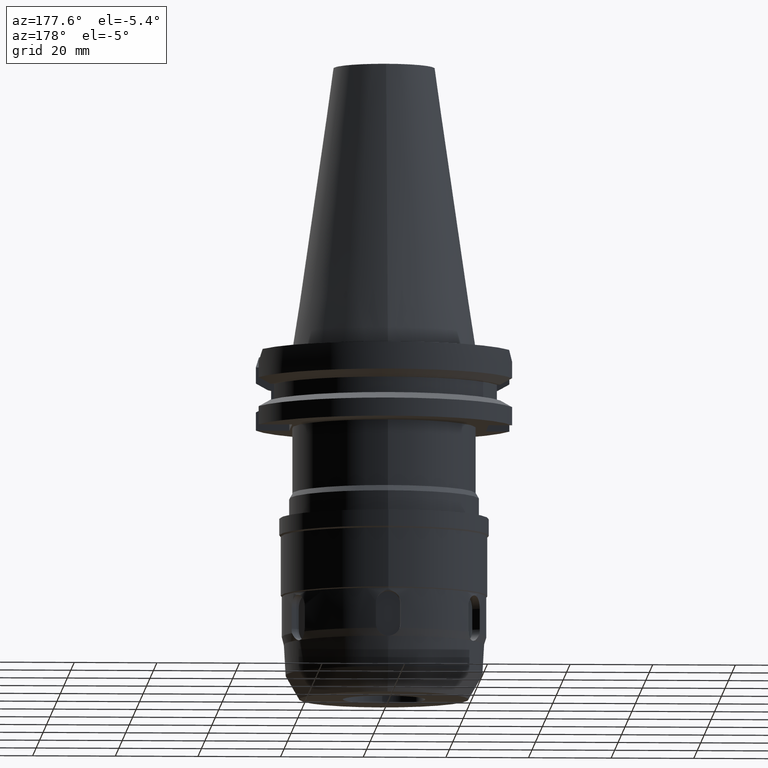
[diagram: clean part render]
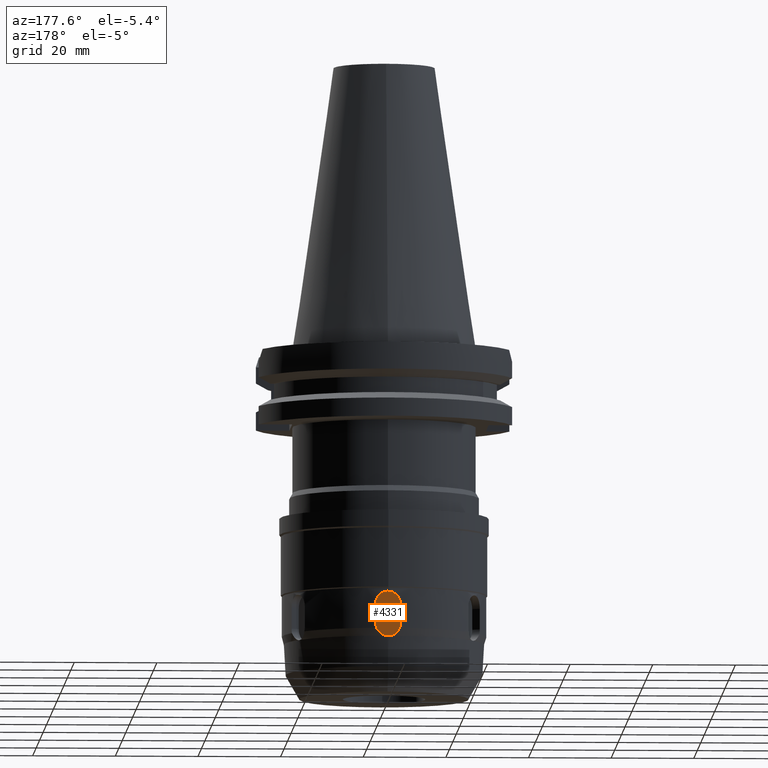
[diagram: same view with one face highlighted and labeled with its STEP entity id]
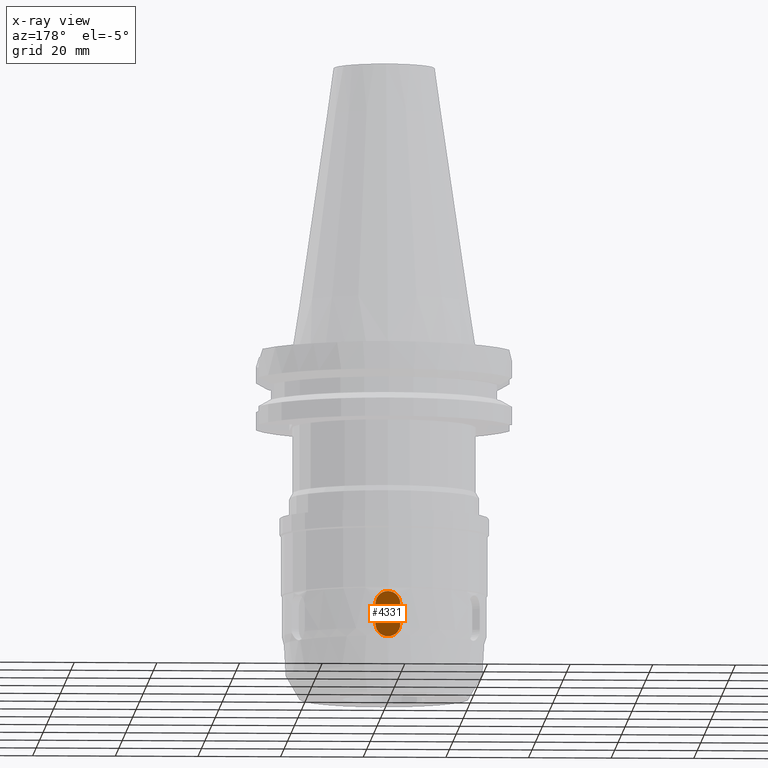
[diagram: x-ray of the same camera — body ghosted, the highlighted face saturated]
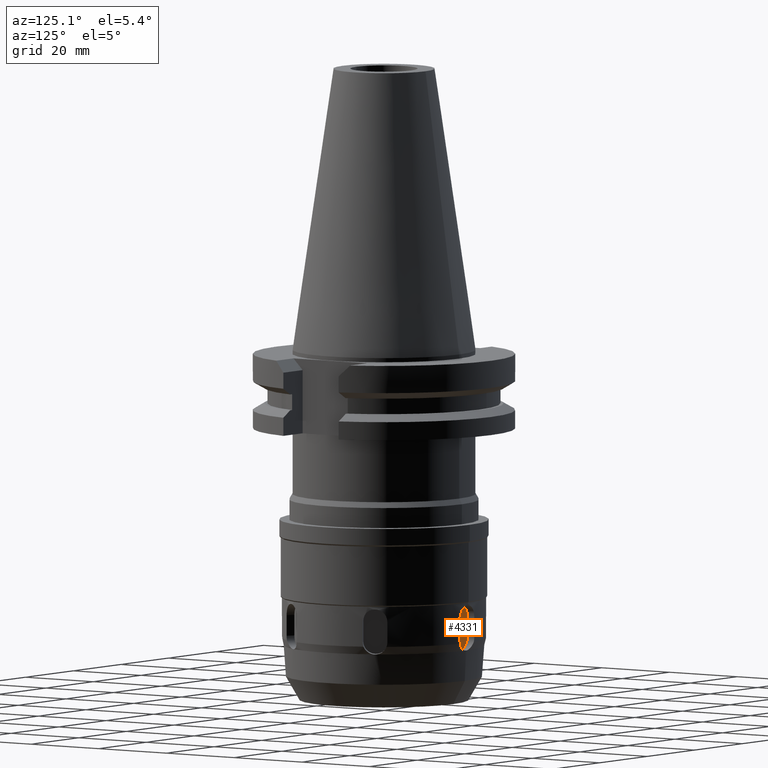
[diagram: same view with one face highlighted and labeled with its STEP entity id]
A machine part, auxiliary view. The second image highlights one B-rep face of the part: STEP entity #4331.
The next image is the same camera in x-ray: the body ghosted, the highlighted face saturated — about 0% of this face is hidden behind the body in this view.
A second angle (auxiliary view) of the same face is appended — the face is thin or edge-on in the first view.
In plain terms, the highlighted planar face has unit normal (0, 1, 0).
Its self-contained STEP definition (entity closure, byte-faithful):
#2096=DIRECTION('',(0.E0,0.E0,-1.E0));
#2097=VECTOR('',#2096,5.E0);
#2098=CARTESIAN_POINT('',(-3.E0,2.25E1,-6.38E1));
#2099=LINE('',#2098,#2097);
#2103=CARTESIAN_POINT('',(0.E0,2.25E1,-6.88E1));
#2104=DIRECTION('',(0.E0,-1.E0,0.E0));
#2105=DIRECTION('',(-1.E0,0.E0,0.E0));
#2106=AXIS2_PLACEMENT_3D('',#2103,#2104,#2105);
#2111=CARTESIAN_POINT('',(0.E0,2.25E1,-6.88E1));
#2112=DIRECTION('',(0.E0,-1.E0,0.E0));
#2113=DIRECTION('',(0.E0,0.E0,-1.E0));
#2114=AXIS2_PLACEMENT_3D('',#2111,#2112,#2113);
#2119=DIRECTION('',(0.E0,0.E0,1.E0));
#2120=VECTOR('',#2119,5.E0);
#2121=CARTESIAN_POINT('',(3.E0,2.25E1,-6.88E1));
#2122=LINE('',#2121,#2120);
#2126=CARTESIAN_POINT('',(0.E0,2.25E1,-6.38E1));
#2127=DIRECTION('',(0.E0,-1.E0,0.E0));
#2128=DIRECTION('',(1.E0,0.E0,0.E0));
#2129=AXIS2_PLACEMENT_3D('',#2126,#2127,#2128);
#2134=CARTESIAN_POINT('',(0.E0,2.25E1,-6.38E1));
#2135=DIRECTION('',(0.E0,-1.E0,0.E0));
#2136=DIRECTION('',(0.E0,0.E0,1.E0));
#2137=AXIS2_PLACEMENT_3D('',#2134,#2135,#2136);
#2660=CARTESIAN_POINT('',(3.E0,2.25E1,-6.88E1));
#2661=VERTEX_POINT('',#2660);
#2662=CARTESIAN_POINT('',(0.E0,2.25E1,-7.18E1));
#2663=VERTEX_POINT('',#2662);
#2664=CARTESIAN_POINT('',(-3.E0,2.25E1,-6.88E1));
#2665=VERTEX_POINT('',#2664);
#2852=CARTESIAN_POINT('',(-3.E0,2.25E1,-6.38E1));
#2853=VERTEX_POINT('',#2852);
#2854=CARTESIAN_POINT('',(0.E0,2.25E1,-6.08E1));
#2855=VERTEX_POINT('',#2854);
#2856=CARTESIAN_POINT('',(3.E0,2.25E1,-6.38E1));
#2857=VERTEX_POINT('',#2856);
#4318=CARTESIAN_POINT('',(0.E0,2.25E1,0.E0));
#4319=DIRECTION('',(0.E0,1.E0,0.E0));
#4320=DIRECTION('',(0.E0,0.E0,-1.E0));
#4321=AXIS2_PLACEMENT_3D('',#4318,#4319,#4320);
#4322=PLANE('',#4321);
#4323=ORIENTED_EDGE('',*,*,#4090,.T.);
#4324=ORIENTED_EDGE('',*,*,#4109,.T.);
#4325=ORIENTED_EDGE('',*,*,#4107,.T.);
#4326=ORIENTED_EDGE('',*,*,#4312,.T.);
#4327=ORIENTED_EDGE('',*,*,#4075,.T.);
#4328=ORIENTED_EDGE('',*,*,#4073,.T.);
#4329=EDGE_LOOP('',(#4323,#4324,#4325,#4326,#4327,#4328));
#4330=FACE_OUTER_BOUND('',#4329,.F.);
#2107=CIRCLE('',#2106,3.E0);
#2115=CIRCLE('',#2114,3.E0);
#2130=CIRCLE('',#2129,3.E0);
#2138=CIRCLE('',#2137,3.E0);
#4073=EDGE_CURVE('',#2855,#2853,#2138,.T.);
#4075=EDGE_CURVE('',#2857,#2855,#2130,.T.);
#4090=EDGE_CURVE('',#2853,#2665,#2099,.T.);
#4107=EDGE_CURVE('',#2663,#2661,#2115,.T.);
#4109=EDGE_CURVE('',#2665,#2663,#2107,.T.);
#4312=EDGE_CURVE('',#2661,#2857,#2122,.T.);
#4331=ADVANCED_FACE('',(#4330),#4322,.T.);